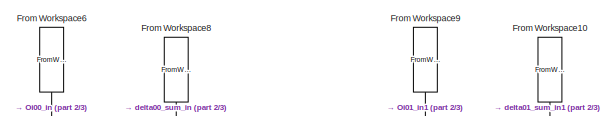
[diagram: root canvas - part 1/3, top center region]
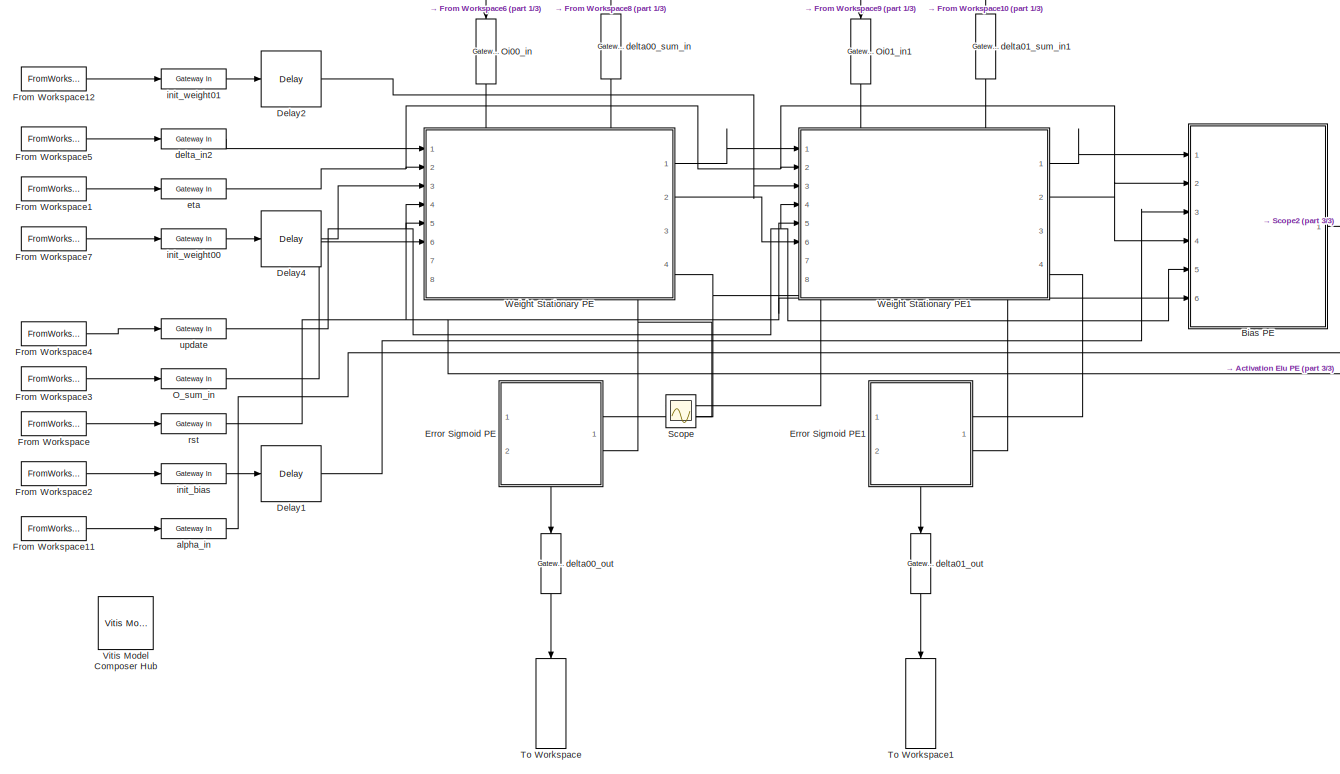
[diagram: root canvas - part 2/3, center side, full height]
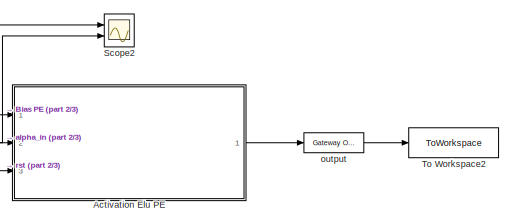
[diagram: root canvas - part 3/3, middle right region]
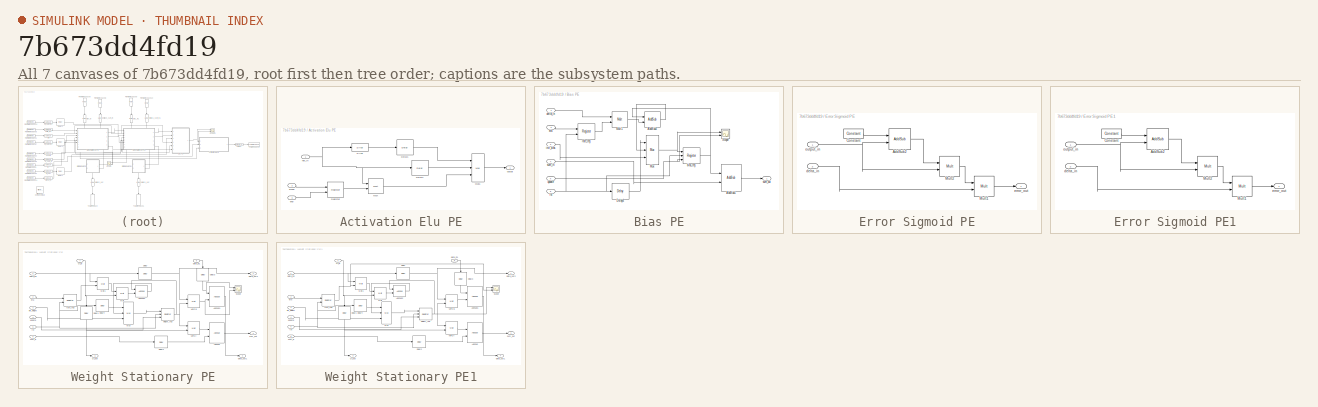
[diagram: thumbnail index - all 7 canvases of the model, root first then tree order]
MODEL slx_7b673dd4fd19
KIND model
CONFIG AbsTol = auto
CONFIG EnableMultiTasking = off
CONFIG FixedStep = auto
CONFIG MaxStep = auto
CONFIG MinStep = auto
CONFIG RelTol = 1e-3
CONFIG SampleTimeConstraint = Unconstrained
CONFIG SolverName = VariableStepAuto
CONFIG StartTime = 0.0
CONFIG StopTime = 10
BLOCK [SubSystem] Activation Elu PE
  Ports = [3, 1]
  RequestExecContextInheritance = off
BLOCK [Reference] Activation Elu PE/Delay1  REF=hdlBasic/Delay
  Ports = [1, 1]
  SourceBlock = hdlBasic/Delay
  SourceType = Delay Block
BLOCK [Reference] Activation Elu PE/Delay4  REF=hdlBasic/Delay
  Ports = [1, 1]
  SourceBlock = hdlBasic/Delay
  SourceType = Delay Block
BLOCK [Reference] Activation Elu PE/Mult  REF=hdlBasic/Mult
  Ports = [2, 1]
  SourceBlock = hdlBasic/Mult
  SourceType = Multiplier Block
BLOCK [Reference] Activation Elu PE/Mux1  REF=hdlBasic/Mux
  Ports = [3, 1]
  SourceBlock = hdlBasic/Mux
  SourceType = Bus Multiplexer Block
BLOCK [Reference] Activation Elu PE/Register  REF=hdlBasic/Register
  Ports = [2, 1]
  SourceBlock = hdlBasic/Register
  SourceType = Register Block
BLOCK [Reference] Activation Elu PE/Slice  REF=hdlBasic/Slice
  Ports = [1, 1]
  SourceBlock = hdlBasic/Slice
  SourceType = Bit Slice Extractor Block
BLOCK [Inport] Activation Elu PE/alpha
  Port = 2
BLOCK [Inport] Activation Elu PE/enb
  Port = 3
BLOCK [Inport] Activation Elu PE/net_in
BLOCK [Outport] Activation Elu PE/output
BLOCK [SubSystem] Bias PE
  Ports = [6, 1]
  RequestExecContextInheritance = off
BLOCK [Reference] Bias PE/AddSub1  REF=hdlBasic/AddSub
  Ports = [2, 1]
  SourceBlock = hdlBasic/AddSub
  SourceType = Adder/Subtracter Block
BLOCK [Reference] Bias PE/AddSub2  REF=hdlBasic/AddSub
  Ports = [2, 1]
  SourceBlock = hdlBasic/AddSub
  SourceType = Adder/Subtracter Block
BLOCK [Reference] Bias PE/Delay4  REF=hdlBasic/Delay
  Ports = [1, 1]
  SourceBlock = hdlBasic/Delay
  SourceType = Delay Block
BLOCK [Reference] Bias PE/Mult1  REF=hdlBasic/Mult
  Ports = [2, 1]
  SourceBlock = hdlBasic/Mult
  SourceType = Multiplier Block
BLOCK [Reference] Bias PE/Mux  REF=hdlBasic/Mux
  Ports = [3, 1]
  SourceBlock = hdlBasic/Mux
  SourceType = Bus Multiplexer Block
BLOCK [Scope] Bias PE/Scope
  Floating = off
  NumInputPorts = 2
  Ports = [2]
  ScopeSpecificationString = Simulink.scopes.TimeScopeBlockCfg('CurrentConfiguration', extmgr.ConfigurationSet(extmgr.Configuration('Core','General UI',true),extmgr.Configuration('Core','Source UI',true),extmgr.Configuration('Sources','WiredSimulink',true,'DataLoggingVariableName','ScopeData1'),extmgr.Configuration('Visuals','Time Domain',true,'SerializedDisplays',{struct('MinYLimReal','-1.6875','MaxYLimReal','0.1875','YLabel...<+2051ch>
BLOCK [Reference] Bias PE/bias_reg  REF=hdlBasic/Register
  Ports = [3, 1]
  SourceBlock = hdlBasic/Register
  SourceType = Register Block
BLOCK [Inport] Bias PE/delta_in
BLOCK [Inport] Bias PE/eta
  Port = 2
BLOCK [Inport] Bias PE/init_bias
  Port = 3
BLOCK [Reference] Bias PE/rate_reg  REF=hdlBasic/Register
  Ports = [2, 1]
  SourceBlock = hdlBasic/Register
  SourceType = Register Block
BLOCK [Inport] Bias PE/rst
  Port = 6
BLOCK [Inport] Bias PE/sum_in
  Port = 4
BLOCK [Outport] Bias PE/sum_out
BLOCK [Inport] Bias PE/update
  Port = 5
BLOCK [Reference] Delay1  REF=hdlBasic/Delay
  Ports = [1, 1]
  SourceBlock = hdlBasic/Delay
  SourceType = Delay Block
BLOCK [Reference] Delay2  REF=hdlBasic/Delay
  Ports = [1, 1]
  SourceBlock = hdlBasic/Delay
  SourceType = Delay Block
BLOCK [Reference] Delay4  REF=hdlBasic/Delay
  Ports = [1, 1]
  SourceBlock = hdlBasic/Delay
  SourceType = Delay Block
BLOCK [SubSystem] Error Sigmoid PE
  PortSchema = {"entries":[{"content":{"sides":[{"content":{"connectorIds":[]},"type":"ConnectorPlacement.EquallySpacedRectSide","uuid":"4b4c7bc9-3645-4c76-a1de-5ab676f1a9ac"},{"content":{"connectorIds":[],"side":"RIGHT"},"type":"ConnectorPlacement.EquallySpacedRectSide","uuid":"d1be90c1-a42c-4064-b554-aa0c88bdcf76"},{"content":{"connectorIds":["In1","In2"],"side":"TOP"},"type":"ConnectorPlacement.EquallySpacedR...<+390ch>
  Ports = [2, 1]
  RequestExecContextInheritance = off
BLOCK [Reference] Error Sigmoid PE/AddSub2  REF=hdlBasic/AddSub
  Ports = [2, 1]
  SourceBlock = hdlBasic/AddSub
  SourceType = Adder/Subtracter Block
BLOCK [Reference] Error Sigmoid PE/Constant  REF=hdlBasic/Constant
  Ports = [0, 1]
  SourceBlock = hdlBasic/Constant
  SourceType = Constant Block Block
BLOCK [Reference] Error Sigmoid PE/Mult1  REF=hdlBasic/Mult
  Ports = [2, 1]
  SourceBlock = hdlBasic/Mult
  SourceType = Multiplier Block
BLOCK [Reference] Error Sigmoid PE/Mult2  REF=hdlBasic/Mult
  Ports = [2, 1]
  SourceBlock = hdlBasic/Mult
  SourceType = Multiplier Block
BLOCK [Inport] Error Sigmoid PE/delta_in
  Port = 2
BLOCK [Outport] Error Sigmoid PE/error_out
BLOCK [Inport] Error Sigmoid PE/output_in
BLOCK [SubSystem] Error Sigmoid PE1
  PortSchema = {"entries":[{"content":{"sides":[{"content":{"connectorIds":[]},"type":"ConnectorPlacement.EquallySpacedRectSide","uuid":"4b4c7bc9-3645-4c76-a1de-5ab676f1a9ac"},{"content":{"connectorIds":[],"side":"RIGHT"},"type":"ConnectorPlacement.EquallySpacedRectSide","uuid":"d1be90c1-a42c-4064-b554-aa0c88bdcf76"},{"content":{"connectorIds":["In1","In2"],"side":"TOP"},"type":"ConnectorPlacement.EquallySpacedR...<+390ch>
  Ports = [2, 1]
  RequestExecContextInheritance = off
BLOCK [Reference] Error Sigmoid PE1/AddSub2  REF=hdlBasic/AddSub
  Ports = [2, 1]
  SourceBlock = hdlBasic/AddSub
  SourceType = Adder/Subtracter Block
BLOCK [Reference] Error Sigmoid PE1/Constant  REF=hdlBasic/Constant
  Ports = [0, 1]
  SourceBlock = hdlBasic/Constant
  SourceType = Constant Block Block
BLOCK [Reference] Error Sigmoid PE1/Mult1  REF=hdlBasic/Mult
  Ports = [2, 1]
  SourceBlock = hdlBasic/Mult
  SourceType = Multiplier Block
BLOCK [Reference] Error Sigmoid PE1/Mult2  REF=hdlBasic/Mult
  Ports = [2, 1]
  SourceBlock = hdlBasic/Mult
  SourceType = Multiplier Block
BLOCK [Inport] Error Sigmoid PE1/delta_in
  Port = 2
BLOCK [Outport] Error Sigmoid PE1/error_out
BLOCK [Inport] Error Sigmoid PE1/output_in
BLOCK [FromWorkspace] From Workspace
  VariableName = rst
BLOCK [FromWorkspace] From Workspace1
  VariableName = eta
BLOCK [FromWorkspace] From Workspace10
  NameLocation = left
  VariableName = delta01
BLOCK [FromWorkspace] From Workspace11
  VariableName = alpha
BLOCK [FromWorkspace] From Workspace12
  VariableName = init_weight01
BLOCK [FromWorkspace] From Workspace2
  VariableName = init_bias
BLOCK [FromWorkspace] From Workspace3
  VariableName = o_sum
BLOCK [FromWorkspace] From Workspace4
  VariableName = update
BLOCK [FromWorkspace] From Workspace5
  VariableName = delta2
BLOCK [FromWorkspace] From Workspace6
  NameLocation = left
  VariableName = oi00
BLOCK [FromWorkspace] From Workspace7
  VariableName = init_weight00
BLOCK [FromWorkspace] From Workspace8
  NameLocation = left
  VariableName = delta00
BLOCK [FromWorkspace] From Workspace9
  NameLocation = left
  VariableName = oi01
BLOCK [Reference] O_sum_in  REF=hdlBasic/Gateway In
  Ports = [1, 1]
  SourceBlock = hdlBasic/Gateway In
  SourceType = Gateway In Block
BLOCK [Reference] Oi00_in  REF=hdlBasic/Gateway In
  NameLocation = left
  Ports = [1, 1]
  SourceBlock = hdlBasic/Gateway In
  SourceType = Gateway In Block
BLOCK [Reference] Oi01_in1  REF=hdlBasic/Gateway In
  NameLocation = left
  Ports = [1, 1]
  SourceBlock = hdlBasic/Gateway In
  SourceType = Gateway In Block
BLOCK [Scope] Scope
  Floating = off
  NumInputPorts = 2
  Ports = [2]
  ScopeSpecificationString = Simulink.scopes.TimeScopeBlockCfg('CurrentConfiguration', extmgr.ConfigurationSet(extmgr.Configuration('Core','General UI',true),extmgr.Configuration('Core','Source UI',true),extmgr.Configuration('Sources','WiredSimulink',true,'DataLoggingVariableName','ScopeData1'),extmgr.Configuration('Visuals','Time Domain',true,'SerializedDisplays',{struct('MinYLimReal','-0.25','MaxYLimReal','2.25','YLabelReal...<+2074ch>
BLOCK [Scope] Scope2
  Floating = off
  NumInputPorts = 2
  Ports = [2]
  ScopeSpecificationString = Simulink.scopes.TimeScopeBlockCfg('CurrentConfiguration', extmgr.ConfigurationSet(extmgr.Configuration('Core','General UI',true),extmgr.Configuration('Core','Source UI',true),extmgr.Configuration('Sources','WiredSimulink',true,'DataLoggingVariableName','ScopeData3'),extmgr.Configuration('Visuals','Time Domain',true,'SerializedDisplays',{struct('MinYLimReal','-0.4375','MaxYLimReal','3.9375','YLabel...<+2055ch>
BLOCK [ToWorkspace] To Workspace
  FixptAsFi = on
  MaxDataPoints = inf
  NameLocation = left
  Ports = [1]
  SampleTime = -1
  SaveFormat = Timeseries
  VariableName = delta00
BLOCK [ToWorkspace] To Workspace1
  FixptAsFi = on
  MaxDataPoints = inf
  NameLocation = left
  Ports = [1]
  SampleTime = -1
  SaveFormat = Timeseries
  VariableName = delta01
BLOCK [ToWorkspace] To Workspace2
  FixptAsFi = on
  MaxDataPoints = inf
  Ports = [1]
  SampleTime = -1
  SaveFormat = Timeseries
  VariableName = output
BLOCK [Reference] Vitis Model Composer Hub  REF=vmcUtilities/Vitis Model Composer Hub
  Ports = []
  SourceBlock = vmcUtilities/Vitis Model Composer Hub
  SourceType = VMC Hub
  Tag = genX
  UserDataPersistent = on
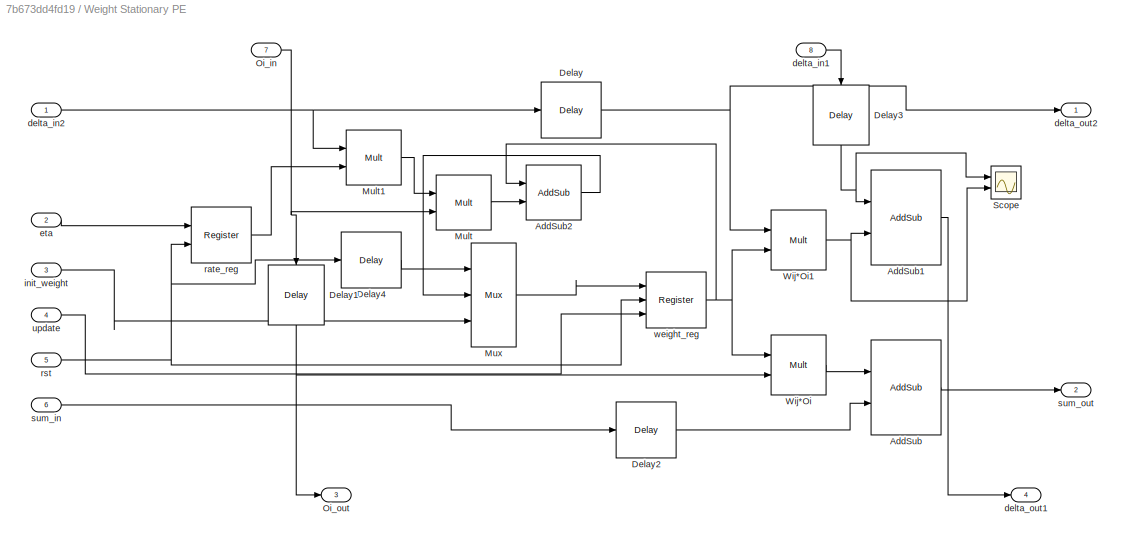
BLOCK [SubSystem] Weight Stationary PE
  PortSchema = {"entries":[{"content":{"sides":[{"content":{"connectorIds":["In1","In2","In3","In4","In5","In6"]},"type":"ConnectorPlacement.EquallySpacedRectSide","uuid":"632a3ded-5b94-406e-b0d8-119737680536"},{"content":{"connectorIds":["Out1","Out2"],"side":"RIGHT"},"type":"ConnectorPlacement.EquallySpacedRectSide","uuid":"c449027c-81bc-4843-8994-fcad26195520"},{"content":{"connectorIds":["In7","In8"],"side":...<+445ch>
  Ports = [8, 4]
  RequestExecContextInheritance = off
BLOCK [Reference] Weight Stationary PE/AddSub  REF=hdlBasic/AddSub
  Ports = [2, 1]
  SourceBlock = hdlBasic/AddSub
  SourceType = Adder/Subtracter Block
BLOCK [Reference] Weight Stationary PE/AddSub1  REF=hdlBasic/AddSub
  Ports = [2, 1]
  SourceBlock = hdlBasic/AddSub
  SourceType = Adder/Subtracter Block
BLOCK [Reference] Weight Stationary PE/AddSub2  REF=hdlBasic/AddSub
  Ports = [2, 1]
  SourceBlock = hdlBasic/AddSub
  SourceType = Adder/Subtracter Block
BLOCK [Reference] Weight Stationary PE/Delay  REF=hdlBasic/Delay
  Ports = [1, 1]
  SourceBlock = hdlBasic/Delay
  SourceType = Delay Block
BLOCK [Reference] Weight Stationary PE/Delay1  REF=hdlBasic/Delay
  NameLocation = left
  Ports = [1, 1]
  SourceBlock = hdlBasic/Delay
  SourceType = Delay Block
BLOCK [Reference] Weight Stationary PE/Delay2  REF=hdlBasic/Delay
  Ports = [1, 1]
  SourceBlock = hdlBasic/Delay
  SourceType = Delay Block
BLOCK [Reference] Weight Stationary PE/Delay3  REF=hdlBasic/Delay
  NameLocation = left
  Ports = [1, 1]
  SourceBlock = hdlBasic/Delay
  SourceType = Delay Block
BLOCK [Reference] Weight Stationary PE/Delay4  REF=hdlBasic/Delay
  Ports = [1, 1]
  SourceBlock = hdlBasic/Delay
  SourceType = Delay Block
BLOCK [Reference] Weight Stationary PE/Mult  REF=hdlBasic/Mult
  Ports = [2, 1]
  SourceBlock = hdlBasic/Mult
  SourceType = Multiplier Block
BLOCK [Reference] Weight Stationary PE/Mult1  REF=hdlBasic/Mult
  Ports = [2, 1]
  SourceBlock = hdlBasic/Mult
  SourceType = Multiplier Block
BLOCK [Reference] Weight Stationary PE/Mux  REF=hdlBasic/Mux
  Ports = [3, 1]
  SourceBlock = hdlBasic/Mux
  SourceType = Bus Multiplexer Block
BLOCK [Inport] Weight Stationary PE/Oi_in
  Port = 7
BLOCK [Outport] Weight Stationary PE/Oi_out
  Port = 3
BLOCK [Scope] Weight Stationary PE/Scope
  Floating = off
  NumInputPorts = 2
  Ports = [2]
  ScopeSpecificationString = Simulink.scopes.TimeScopeBlockCfg('CurrentConfiguration', extmgr.ConfigurationSet(extmgr.Configuration('Core','General UI',true),extmgr.Configuration('Core','Source UI',true),extmgr.Configuration('Sources','WiredSimulink',true),extmgr.Configuration('Visuals','Time Domain',true,'SerializedDisplays',{struct('MinYLimReal','-0.03125','MaxYLimReal','0.28125','YLabelReal','','MinYLimMag','0.00000','MaxY...<+2026ch>
BLOCK [Reference] Weight Stationary PE/Wij*Oi  REF=hdlBasic/Mult
  Ports = [2, 1]
  SourceBlock = hdlBasic/Mult
  SourceType = Multiplier Block
BLOCK [Reference] Weight Stationary PE/Wij*Oi1  REF=hdlBasic/Mult
  Ports = [2, 1]
  SourceBlock = hdlBasic/Mult
  SourceType = Multiplier Block
BLOCK [Inport] Weight Stationary PE/delta_in1
  Port = 8
BLOCK [Inport] Weight Stationary PE/delta_in2
BLOCK [Outport] Weight Stationary PE/delta_out1
  Port = 4
BLOCK [Outport] Weight Stationary PE/delta_out2
BLOCK [Inport] Weight Stationary PE/eta
  Port = 2
BLOCK [Inport] Weight Stationary PE/init_weight
  Port = 3
BLOCK [Reference] Weight Stationary PE/rate_reg  REF=hdlBasic/Register
  Ports = [2, 1]
  SourceBlock = hdlBasic/Register
  SourceType = Register Block
BLOCK [Inport] Weight Stationary PE/rst
  Port = 5
BLOCK [Inport] Weight Stationary PE/sum_in
  Port = 6
BLOCK [Outport] Weight Stationary PE/sum_out
  Port = 2
BLOCK [Inport] Weight Stationary PE/update
  Port = 4
BLOCK [Reference] Weight Stationary PE/weight_reg  REF=hdlBasic/Register
  Ports = [3, 1]
  SourceBlock = hdlBasic/Register
  SourceType = Register Block
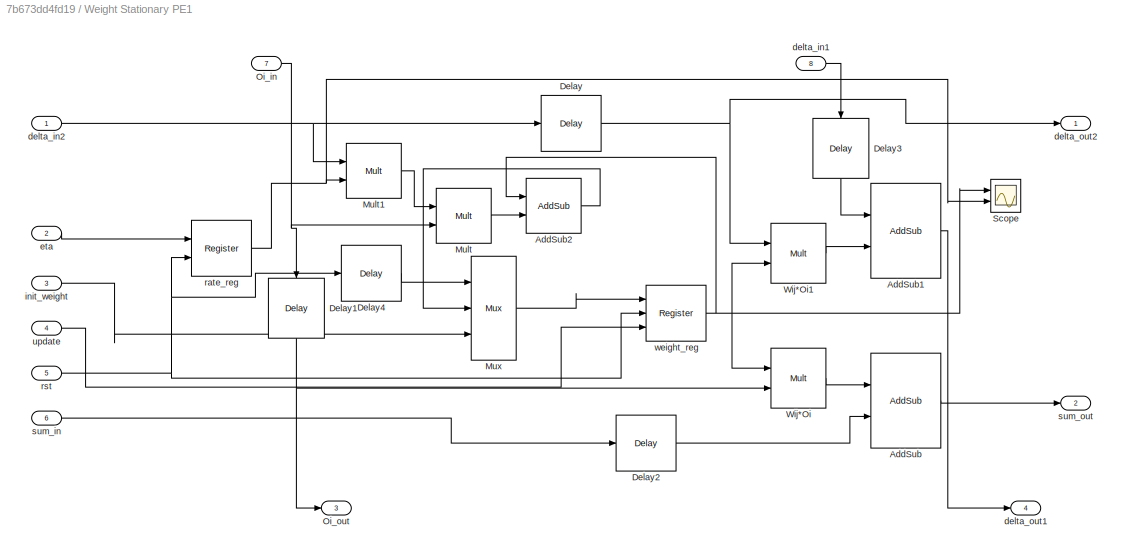
BLOCK [SubSystem] Weight Stationary PE1
  PortSchema = {"entries":[{"content":{"sides":[{"content":{"connectorIds":["In1","In2","In3","In4","In5","In6"]},"type":"ConnectorPlacement.EquallySpacedRectSide","uuid":"632a3ded-5b94-406e-b0d8-119737680536"},{"content":{"connectorIds":["Out1","Out2"],"side":"RIGHT"},"type":"ConnectorPlacement.EquallySpacedRectSide","uuid":"c449027c-81bc-4843-8994-fcad26195520"},{"content":{"connectorIds":["In7","In8"],"side":...<+445ch>
  Ports = [8, 4]
  RequestExecContextInheritance = off
BLOCK [Reference] Weight Stationary PE1/AddSub  REF=hdlBasic/AddSub
  Ports = [2, 1]
  SourceBlock = hdlBasic/AddSub
  SourceType = Adder/Subtracter Block
BLOCK [Reference] Weight Stationary PE1/AddSub1  REF=hdlBasic/AddSub
  Ports = [2, 1]
  SourceBlock = hdlBasic/AddSub
  SourceType = Adder/Subtracter Block
BLOCK [Reference] Weight Stationary PE1/AddSub2  REF=hdlBasic/AddSub
  Ports = [2, 1]
  SourceBlock = hdlBasic/AddSub
  SourceType = Adder/Subtracter Block
BLOCK [Reference] Weight Stationary PE1/Delay  REF=hdlBasic/Delay
  Ports = [1, 1]
  SourceBlock = hdlBasic/Delay
  SourceType = Delay Block
BLOCK [Reference] Weight Stationary PE1/Delay1  REF=hdlBasic/Delay
  NameLocation = left
  Ports = [1, 1]
  SourceBlock = hdlBasic/Delay
  SourceType = Delay Block
BLOCK [Reference] Weight Stationary PE1/Delay2  REF=hdlBasic/Delay
  Ports = [1, 1]
  SourceBlock = hdlBasic/Delay
  SourceType = Delay Block
BLOCK [Reference] Weight Stationary PE1/Delay3  REF=hdlBasic/Delay
  NameLocation = left
  Ports = [1, 1]
  SourceBlock = hdlBasic/Delay
  SourceType = Delay Block
BLOCK [Reference] Weight Stationary PE1/Delay4  REF=hdlBasic/Delay
  Ports = [1, 1]
  SourceBlock = hdlBasic/Delay
  SourceType = Delay Block
BLOCK [Reference] Weight Stationary PE1/Mult  REF=hdlBasic/Mult
  Ports = [2, 1]
  SourceBlock = hdlBasic/Mult
  SourceType = Multiplier Block
BLOCK [Reference] Weight Stationary PE1/Mult1  REF=hdlBasic/Mult
  Ports = [2, 1]
  SourceBlock = hdlBasic/Mult
  SourceType = Multiplier Block
BLOCK [Reference] Weight Stationary PE1/Mux  REF=hdlBasic/Mux
  Ports = [3, 1]
  SourceBlock = hdlBasic/Mux
  SourceType = Bus Multiplexer Block
BLOCK [Inport] Weight Stationary PE1/Oi_in
  Port = 7
BLOCK [Outport] Weight Stationary PE1/Oi_out
  Port = 3
BLOCK [Scope] Weight Stationary PE1/Scope
  Floating = off
  NumInputPorts = 2
  Ports = [2]
  ScopeSpecificationString = Simulink.scopes.TimeScopeBlockCfg('CurrentConfiguration', extmgr.ConfigurationSet(extmgr.Configuration('Core','General UI',true),extmgr.Configuration('Core','Source UI',true),extmgr.Configuration('Sources','WiredSimulink',true),extmgr.Configuration('Visuals','Time Domain',true,'SerializedDisplays',{struct('MinYLimReal','-0.0625','MaxYLimReal','0.5625','YLabelReal','','MinYLimMag','0.00000','MaxYLi...<+2026ch>
BLOCK [Reference] Weight Stationary PE1/Wij*Oi  REF=hdlBasic/Mult
  Ports = [2, 1]
  SourceBlock = hdlBasic/Mult
  SourceType = Multiplier Block
BLOCK [Reference] Weight Stationary PE1/Wij*Oi1  REF=hdlBasic/Mult
  Ports = [2, 1]
  SourceBlock = hdlBasic/Mult
  SourceType = Multiplier Block
BLOCK [Inport] Weight Stationary PE1/delta_in1
  Port = 8
BLOCK [Inport] Weight Stationary PE1/delta_in2
BLOCK [Outport] Weight Stationary PE1/delta_out1
  Port = 4
BLOCK [Outport] Weight Stationary PE1/delta_out2
BLOCK [Inport] Weight Stationary PE1/eta
  Port = 2
BLOCK [Inport] Weight Stationary PE1/init_weight
  Port = 3
BLOCK [Reference] Weight Stationary PE1/rate_reg  REF=hdlBasic/Register
  Ports = [2, 1]
  SourceBlock = hdlBasic/Register
  SourceType = Register Block
BLOCK [Inport] Weight Stationary PE1/rst
  Port = 5
BLOCK [Inport] Weight Stationary PE1/sum_in
  Port = 6
BLOCK [Outport] Weight Stationary PE1/sum_out
  Port = 2
BLOCK [Inport] Weight Stationary PE1/update
  Port = 4
BLOCK [Reference] Weight Stationary PE1/weight_reg  REF=hdlBasic/Register
  Ports = [3, 1]
  SourceBlock = hdlBasic/Register
  SourceType = Register Block
BLOCK [Reference] alpha_in  REF=hdlBasic/Gateway In
  Ports = [1, 1]
  SourceBlock = hdlBasic/Gateway In
  SourceType = Gateway In Block
BLOCK [Reference] delta00_out  REF=hdlBasic/Gateway Out
  NameLocation = left
  Ports = [1, 1]
  SourceBlock = hdlBasic/Gateway Out
  SourceType = Gateway Out Block
BLOCK [Reference] delta00_sum_in  REF=hdlBasic/Gateway In
  NameLocation = left
  Ports = [1, 1]
  SourceBlock = hdlBasic/Gateway In
  SourceType = Gateway In Block
BLOCK [Reference] delta01_out  REF=hdlBasic/Gateway Out
  NameLocation = left
  Ports = [1, 1]
  SourceBlock = hdlBasic/Gateway Out
  SourceType = Gateway Out Block
BLOCK [Reference] delta01_sum_in1  REF=hdlBasic/Gateway In
  NameLocation = left
  Ports = [1, 1]
  SourceBlock = hdlBasic/Gateway In
  SourceType = Gateway In Block
BLOCK [Reference] delta_in2  REF=hdlBasic/Gateway In
  Ports = [1, 1]
  SourceBlock = hdlBasic/Gateway In
  SourceType = Gateway In Block
BLOCK [Reference] eta  REF=hdlBasic/Gateway In
  Ports = [1, 1]
  SourceBlock = hdlBasic/Gateway In
  SourceType = Gateway In Block
BLOCK [Reference] init_bias  REF=hdlBasic/Gateway In
  Ports = [1, 1]
  SourceBlock = hdlBasic/Gateway In
  SourceType = Gateway In Block
BLOCK [Reference] init_weight00  REF=hdlBasic/Gateway In
  Ports = [1, 1]
  SourceBlock = hdlBasic/Gateway In
  SourceType = Gateway In Block
BLOCK [Reference] init_weight01  REF=hdlBasic/Gateway In
  Ports = [1, 1]
  SourceBlock = hdlBasic/Gateway In
  SourceType = Gateway In Block
BLOCK [Reference] output  REF=hdlBasic/Gateway Out
  Ports = [1, 1]
  SourceBlock = hdlBasic/Gateway Out
  SourceType = Gateway Out Block
BLOCK [Reference] rst  REF=hdlBasic/Gateway In
  Ports = [1, 1]
  SourceBlock = hdlBasic/Gateway In
  SourceType = Gateway In Block
BLOCK [Reference] update  REF=hdlBasic/Gateway In
  Ports = [1, 1]
  SourceBlock = hdlBasic/Gateway In
  SourceType = Gateway In Block
LINE Activation Elu PE/Delay1:1 -> Activation Elu PE/Mux1:1
LINE Activation Elu PE/Delay4:1 -> Activation Elu PE/Mux1:2
LINE Activation Elu PE/Mult:1 -> Activation Elu PE/Mux1:3
LINE Activation Elu PE/Mux1:1 -> Activation Elu PE/output:1
LINE Activation Elu PE/Register:1 -> Activation Elu PE/Mult:2
LINE Activation Elu PE/Slice:1 -> Activation Elu PE/Delay1:1
LINE Activation Elu PE/alpha:1 -> Activation Elu PE/Register:1
LINE Activation Elu PE/enb:1 -> Activation Elu PE/Register:2
NET Activation Elu PE/net_in:1 -> Activation Elu PE/Delay4:1, Activation Elu PE/Mult:1, Activation Elu PE/Slice:1
LINE Activation Elu PE:1 -> output:1
LINE Bias PE/AddSub1:1 -> Bias PE/sum_out:1
LINE Bias PE/AddSub2:1 -> Bias PE/Mux:2
LINE Bias PE/Delay4:1 -> Bias PE/Mux:1
LINE Bias PE/Mult1:1 -> Bias PE/AddSub2:2
NET Bias PE/Mux:1 -> Bias PE/Scope:1, Bias PE/bias_reg:1
NET Bias PE/bias_reg:1 -> Bias PE/AddSub1:1, Bias PE/AddSub2:1
LINE Bias PE/delta_in:1 -> Bias PE/Mult1:1
LINE Bias PE/eta:1 -> Bias PE/rate_reg:1
LINE Bias PE/init_bias:1 -> Bias PE/Mux:3
LINE Bias PE/rate_reg:1 -> Bias PE/Mult1:2
NET Bias PE/rst:1 -> Bias PE/Delay4:1, Bias PE/bias_reg:2, Bias PE/rate_reg:2
LINE Bias PE/sum_in:1 -> Bias PE/AddSub1:2
NET Bias PE/update:1 -> Bias PE/Scope:2, Bias PE/bias_reg:3
NET Bias PE:1 -> Activation Elu PE:1, Scope2:1
LINE Delay1:1 -> Bias PE:3
LINE Delay2:1 -> Weight Stationary PE1:3
LINE Delay4:1 -> Weight Stationary PE:3
LINE Error Sigmoid PE/AddSub2:1 -> Error Sigmoid PE/Mult2:1
LINE Error Sigmoid PE/Constant:1 -> Error Sigmoid PE/AddSub2:1
LINE Error Sigmoid PE/Mult1:1 -> Error Sigmoid PE/error_out:1
LINE Error Sigmoid PE/Mult2:1 -> Error Sigmoid PE/Mult1:1
LINE Error Sigmoid PE/delta_in:1 -> Error Sigmoid PE/Mult1:2
NET Error Sigmoid PE/output_in:1 -> Error Sigmoid PE/AddSub2:2, Error Sigmoid PE/Mult2:2
LINE Error Sigmoid PE1/AddSub2:1 -> Error Sigmoid PE1/Mult2:1
LINE Error Sigmoid PE1/Constant:1 -> Error Sigmoid PE1/AddSub2:1
LINE Error Sigmoid PE1/Mult1:1 -> Error Sigmoid PE1/error_out:1
LINE Error Sigmoid PE1/Mult2:1 -> Error Sigmoid PE1/Mult1:1
LINE Error Sigmoid PE1/delta_in:1 -> Error Sigmoid PE1/Mult1:2
NET Error Sigmoid PE1/output_in:1 -> Error Sigmoid PE1/AddSub2:2, Error Sigmoid PE1/Mult2:2
LINE Error Sigmoid PE1:1 -> delta01_out:1
LINE Error Sigmoid PE:1 -> delta00_out:1
LINE From Workspace10:1 -> delta01_sum_in1:1
LINE From Workspace11:1 -> alpha_in:1
LINE From Workspace12:1 -> init_weight01:1
LINE From Workspace1:1 -> eta:1
LINE From Workspace2:1 -> init_bias:1
LINE From Workspace3:1 -> O_sum_in:1
LINE From Workspace4:1 -> update:1
LINE From Workspace5:1 -> delta_in2:1
LINE From Workspace6:1 -> Oi00_in:1
LINE From Workspace7:1 -> init_weight00:1
LINE From Workspace8:1 -> delta00_sum_in:1
LINE From Workspace9:1 -> Oi01_in1:1
LINE From Workspace:1 -> rst:1
LINE O_sum_in:1 -> Weight Stationary PE:6
LINE Oi00_in:1 -> Weight Stationary PE:7
LINE Oi01_in1:1 -> Weight Stationary PE1:7
LINE Weight Stationary PE/AddSub1:1 -> Weight Stationary PE/delta_out1:1
LINE Weight Stationary PE/AddSub2:1 -> Weight Stationary PE/Mux:2
LINE Weight Stationary PE/AddSub:1 -> Weight Stationary PE/sum_out:1
NET Weight Stationary PE/Delay1:1 -> Weight Stationary PE/Oi_out:1, Weight Stationary PE/Wij*Oi:2
LINE Weight Stationary PE/Delay2:1 -> Weight Stationary PE/AddSub:2
NET Weight Stationary PE/Delay3:1 -> Weight Stationary PE/AddSub1:1, Weight Stationary PE/Scope:1
LINE Weight Stationary PE/Delay4:1 -> Weight Stationary PE/Mux:1
NET Weight Stationary PE/Delay:1 -> Weight Stationary PE/Wij*Oi1:1, Weight Stationary PE/delta_out2:1
LINE Weight Stationary PE/Mult1:1 -> Weight Stationary PE/Mult:1
LINE Weight Stationary PE/Mult:1 -> Weight Stationary PE/AddSub2:2
LINE Weight Stationary PE/Mux:1 -> Weight Stationary PE/weight_reg:1
NET Weight Stationary PE/Oi_in:1 -> Weight Stationary PE/Delay1:1, Weight Stationary PE/Mult:2
NET Weight Stationary PE/Wij*Oi1:1 -> Weight Stationary PE/AddSub1:2, Weight Stationary PE/Scope:2
LINE Weight Stationary PE/Wij*Oi:1 -> Weight Stationary PE/AddSub:1
LINE Weight Stationary PE/delta_in1:1 -> Weight Stationary PE/Delay3:1
NET Weight Stationary PE/delta_in2:1 -> Weight Stationary PE/Delay:1, Weight Stationary PE/Mult1:1
LINE Weight Stationary PE/eta:1 -> Weight Stationary PE/rate_reg:1
LINE Weight Stationary PE/init_weight:1 -> Weight Stationary PE/Mux:3
LINE Weight Stationary PE/rate_reg:1 -> Weight Stationary PE/Mult1:2
NET Weight Stationary PE/rst:1 -> Weight Stationary PE/Delay4:1, Weight Stationary PE/rate_reg:2, Weight Stationary PE/weight_reg:2
LINE Weight Stationary PE/sum_in:1 -> Weight Stationary PE/Delay2:1
LINE Weight Stationary PE/update:1 -> Weight Stationary PE/weight_reg:3
NET Weight Stationary PE/weight_reg:1 -> Weight Stationary PE/AddSub2:1, Weight Stationary PE/Wij*Oi1:2, Weight Stationary PE/Wij*Oi:1
LINE Weight Stationary PE1/AddSub1:1 -> Weight Stationary PE1/delta_out1:1
LINE Weight Stationary PE1/AddSub2:1 -> Weight Stationary PE1/Mux:2
LINE Weight Stationary PE1/AddSub:1 -> Weight Stationary PE1/sum_out:1
NET Weight Stationary PE1/Delay1:1 -> Weight Stationary PE1/Oi_out:1, Weight Stationary PE1/Wij*Oi:2
LINE Weight Stationary PE1/Delay2:1 -> Weight Stationary PE1/AddSub:2
LINE Weight Stationary PE1/Delay3:1 -> Weight Stationary PE1/AddSub1:1
LINE Weight Stationary PE1/Delay4:1 -> Weight Stationary PE1/Mux:1
NET Weight Stationary PE1/Delay:1 -> Weight Stationary PE1/Wij*Oi1:1, Weight Stationary PE1/delta_out2:1
LINE Weight Stationary PE1/Mult1:1 -> Weight Stationary PE1/Mult:1
LINE Weight Stationary PE1/Mult:1 -> Weight Stationary PE1/AddSub2:2
LINE Weight Stationary PE1/Mux:1 -> Weight Stationary PE1/weight_reg:1
NET Weight Stationary PE1/Oi_in:1 -> Weight Stationary PE1/Delay1:1, Weight Stationary PE1/Mult:2
LINE Weight Stationary PE1/Wij*Oi1:1 -> Weight Stationary PE1/AddSub1:2
LINE Weight Stationary PE1/Wij*Oi:1 -> Weight Stationary PE1/AddSub:1
LINE Weight Stationary PE1/delta_in1:1 -> Weight Stationary PE1/Delay3:1
NET Weight Stationary PE1/delta_in2:1 -> Weight Stationary PE1/Delay:1, Weight Stationary PE1/Mult1:1
LINE Weight Stationary PE1/eta:1 -> Weight Stationary PE1/rate_reg:1
LINE Weight Stationary PE1/init_weight:1 -> Weight Stationary PE1/Mux:3
NET Weight Stationary PE1/rate_reg:1 -> Weight Stationary PE1/Mult1:2, Weight Stationary PE1/Scope:2
NET Weight Stationary PE1/rst:1 -> Weight Stationary PE1/Delay4:1, Weight Stationary PE1/rate_reg:2, Weight Stationary PE1/weight_reg:2
LINE Weight Stationary PE1/sum_in:1 -> Weight Stationary PE1/Delay2:1
LINE Weight Stationary PE1/update:1 -> Weight Stationary PE1/weight_reg:3
NET Weight Stationary PE1/weight_reg:1 -> Weight Stationary PE1/AddSub2:1, Weight Stationary PE1/Scope:1, Weight Stationary PE1/Wij*Oi1:2, Weight Stationary PE1/Wij*Oi:1
LINE Weight Stationary PE1:1 -> Bias PE:1
LINE Weight Stationary PE1:2 -> Bias PE:4
LINE Weight Stationary PE1:3 -> Error Sigmoid PE1:1
LINE Weight Stationary PE1:4 -> Error Sigmoid PE1:2
LINE Weight Stationary PE:1 -> Weight Stationary PE1:1
LINE Weight Stationary PE:2 -> Weight Stationary PE1:6
NET Weight Stationary PE:3 -> Error Sigmoid PE:1, Scope:1
NET Weight Stationary PE:4 -> Error Sigmoid PE:2, Scope:2
NET alpha_in:1 -> Activation Elu PE:2, Scope2:2
LINE delta00_out:1 -> To Workspace:1
LINE delta00_sum_in:1 -> Weight Stationary PE:8
LINE delta01_out:1 -> To Workspace1:1
LINE delta01_sum_in1:1 -> Weight Stationary PE1:8
LINE delta_in2:1 -> Weight Stationary PE:1
NET eta:1 -> Bias PE:2, Weight Stationary PE1:2, Weight Stationary PE:2
LINE init_bias:1 -> Delay1:1
LINE init_weight00:1 -> Delay4:1
LINE init_weight01:1 -> Delay2:1
LINE output:1 -> To Workspace2:1
NET rst:1 -> Activation Elu PE:3, Bias PE:6, Weight Stationary PE1:5, Weight Stationary PE:5
NET update:1 -> Bias PE:5, Weight Stationary PE1:4, Weight Stationary PE:4
note: NET lines group one-source signal fan-out (src -> all destinations, sorted); 1:1 wires keep LINE
